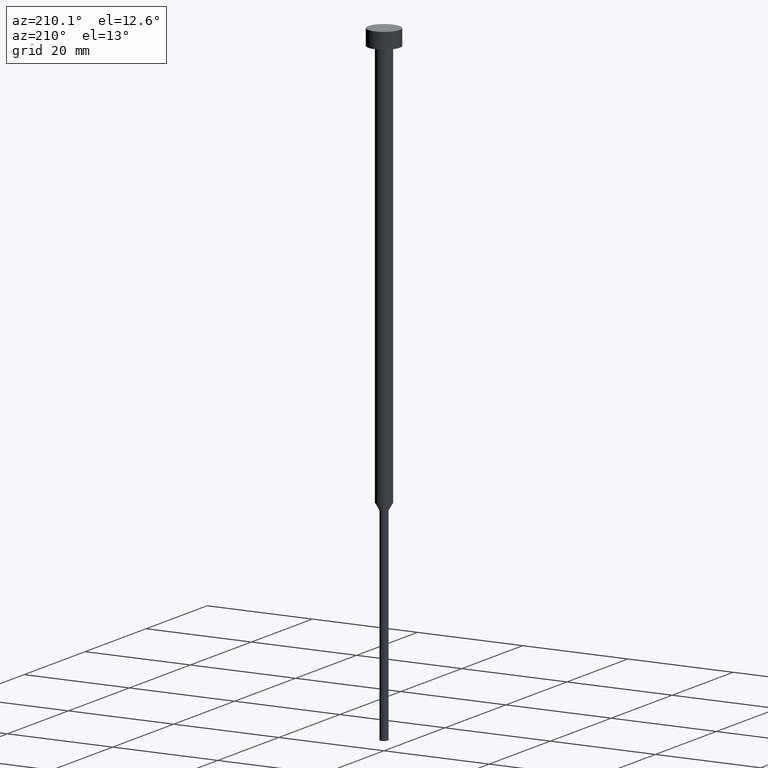
[diagram: clean part render]
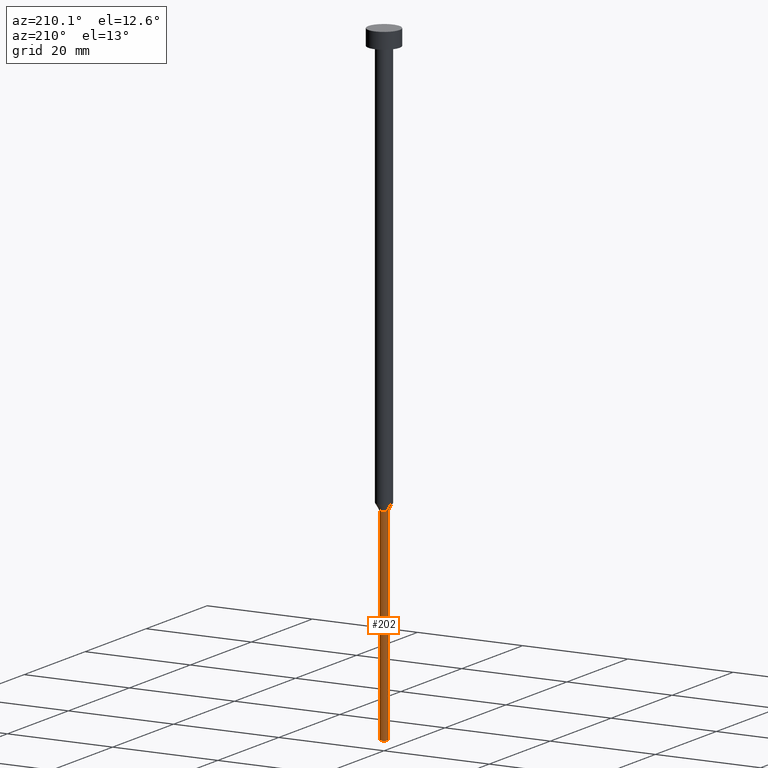
[diagram: same view with one face highlighted and labeled with its STEP entity id]
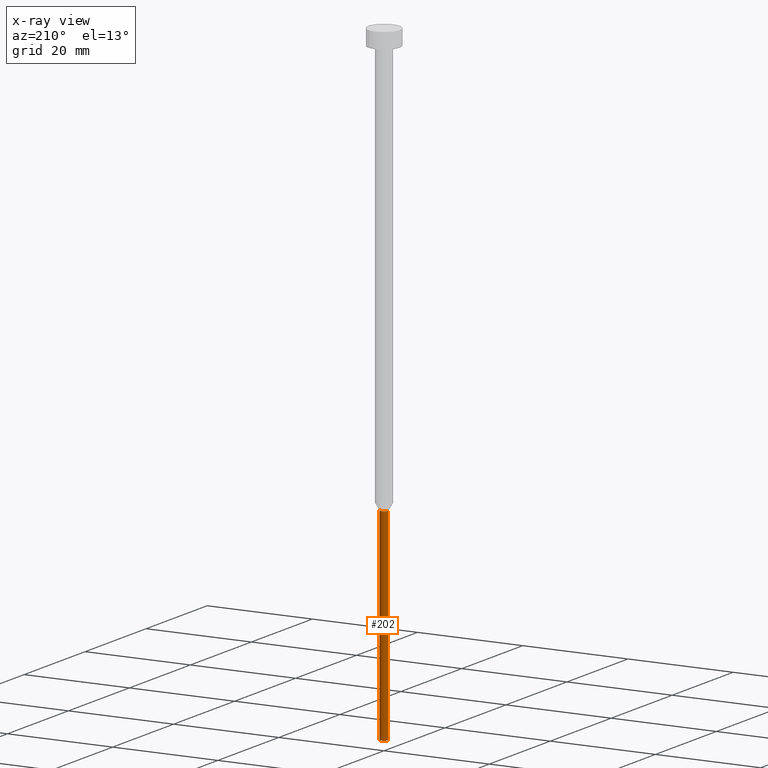
[diagram: x-ray of the same camera — body ghosted, the highlighted face saturated]
A machine part, auxiliary view. The second image highlights one B-rep face of the part: STEP entity #202.
The next image is the same camera in x-ray: the body ghosted, the highlighted face saturated — about 0% of this face is hidden behind the body in this view.
In plain terms, the highlighted cylindrical surface (edge-blend (fillet) strip) has radius 0.75 mm, axis along (-0, -0, 1).
Its self-contained STEP definition (entity closure, byte-faithful):
#30 = DIRECTION ( 'NONE',  ( 1.000000000000000000, 0.000000000000000000, 0.000000000000000000 ) ) ;
#32 = AXIS2_PLACEMENT_3D ( 'NONE', #214, #121, #95 ) ;
#33 = CARTESIAN_POINT ( 'NONE',  ( -0.7500000000000000000, 9.184850993605149670E-17, -81.29903810567665801 ) ) ;
#69 = CIRCLE ( 'NONE', #163, 0.7500000000000000000 ) ;
#73 = VERTEX_POINT ( 'NONE', #33 ) ;
#80 = VECTOR ( 'NONE', #180, 1000.000000000000000 ) ;
#85 = LINE ( 'NONE', #266, #220 ) ;
#95 = DIRECTION ( 'NONE',  ( 1.000000000000000000, 0.000000000000000000, 0.000000000000000000 ) ) ;
#106 = VERTEX_POINT ( 'NONE', #290 ) ;
#121 = DIRECTION ( 'NONE',  ( -0.000000000000000000, -0.000000000000000000, 1.000000000000000000 ) ) ;
#130 = VERTEX_POINT ( 'NONE', #294 ) ;
#143 = FACE_OUTER_BOUND ( 'NONE', #275, .T. ) ;
#148 = AXIS2_PLACEMENT_3D ( 'NONE', #281, #221, #30 ) ;
#163 = AXIS2_PLACEMENT_3D ( 'NONE', #230, #334, #208 ) ;
#180 = DIRECTION ( 'NONE',  ( -0.000000000000000000, -0.000000000000000000, 1.000000000000000000 ) ) ;
#186 = ORIENTED_EDGE ( 'NONE', *, *, #301, .T. ) ;
#195 = CIRCLE ( 'NONE', #32, 0.7500000000000000000 ) ;
#197 = CYLINDRICAL_SURFACE ( 'NONE', #148, 0.7500000000000000000 ) ;
#202 = ADVANCED_FACE ( 'NONE', ( #143 ), #197, .T. ) ;
#206 = VERTEX_POINT ( 'NONE', #256 ) ;
#208 = DIRECTION ( 'NONE',  ( 1.000000000000000000, 0.000000000000000000, 0.000000000000000000 ) ) ;
#212 = EDGE_CURVE ( 'NONE', #106, #73, #69, .T. ) ;
#214 = CARTESIAN_POINT ( 'NONE',  ( 0.000000000000000000, 0.000000000000000000, -120.0000000000000000 ) ) ;
#220 = VECTOR ( 'NONE', #239, 1000.000000000000000 ) ;
#221 = DIRECTION ( 'NONE',  ( -0.000000000000000000, -0.000000000000000000, 1.000000000000000000 ) ) ;
#230 = CARTESIAN_POINT ( 'NONE',  ( 0.000000000000000000, 0.000000000000000000, -81.29903810567665801 ) ) ;
#237 = EDGE_CURVE ( 'NONE', #206, #130, #195, .T. ) ;
#239 = DIRECTION ( 'NONE',  ( -0.000000000000000000, -0.000000000000000000, 1.000000000000000000 ) ) ;
#250 = ORIENTED_EDGE ( 'NONE', *, *, #212, .F. ) ;
#256 = CARTESIAN_POINT ( 'NONE',  ( 0.7500000000000000000, 0.000000000000000000, -120.0000000000000000 ) ) ;
#260 = ORIENTED_EDGE ( 'NONE', *, *, #237, .T. ) ;
#266 = CARTESIAN_POINT ( 'NONE',  ( -0.7500000000000000000, 9.184850993605149670E-17, 0.000000000000000000 ) ) ;
#275 = EDGE_LOOP ( 'NONE', ( #260, #186, #250, #340 ) ) ;
#281 = CARTESIAN_POINT ( 'NONE',  ( 0.000000000000000000, 0.000000000000000000, 0.000000000000000000 ) ) ;
#290 = CARTESIAN_POINT ( 'NONE',  ( 0.7500000000000000000, 0.000000000000000000, -81.29903810567665801 ) ) ;
#294 = CARTESIAN_POINT ( 'NONE',  ( -0.7500000000000000000, 9.184850993605149670E-17, -120.0000000000000000 ) ) ;
#301 = EDGE_CURVE ( 'NONE', #130, #73, #85, .T. ) ;
#309 = EDGE_CURVE ( 'NONE', #206, #106, #323, .T. ) ;
#323 = LINE ( 'NONE', #339, #80 ) ;
#334 = DIRECTION ( 'NONE',  ( -0.000000000000000000, -0.000000000000000000, 1.000000000000000000 ) ) ;
#339 = CARTESIAN_POINT ( 'NONE',  ( 0.7500000000000000000, 0.000000000000000000, 0.000000000000000000 ) ) ;
#340 = ORIENTED_EDGE ( 'NONE', *, *, #309, .F. ) ;